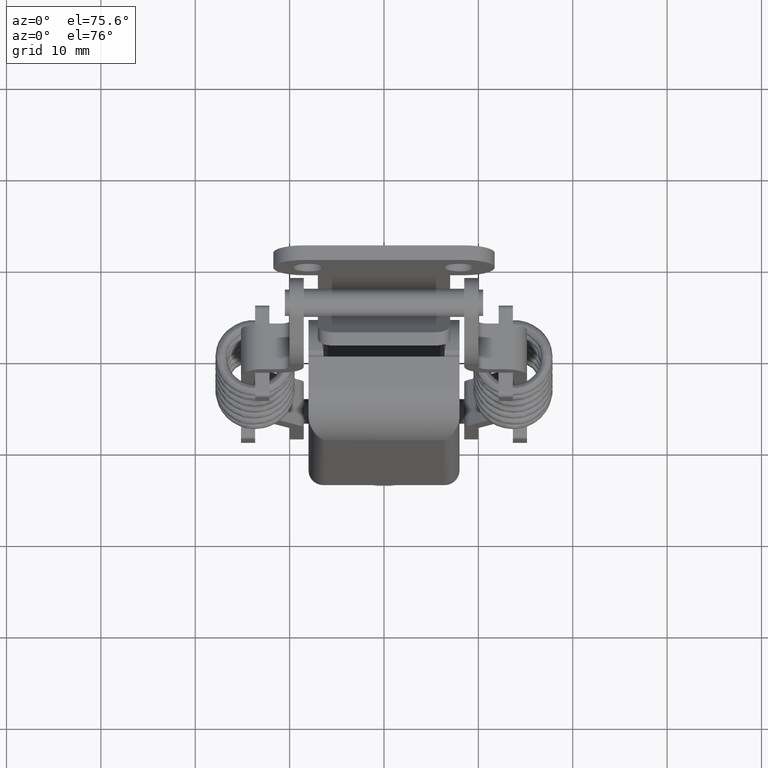
[diagram: clean part render]
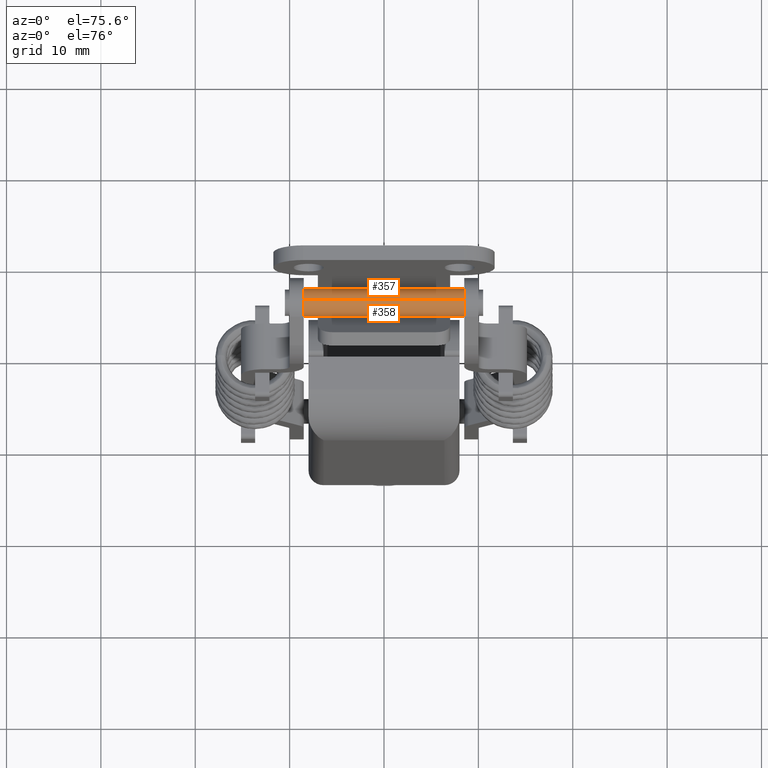
[diagram: same view with one multi-face feature highlighted, each face labeled with its STEP entity id]
A machine part, auxiliary view. The highlighted faces form ONE feature: a constant-radius fillet chain: 2 tangent blend faces with common blend radius 1.5 mm. The faces share edges in the B-rep.
Their STEP definitions:
[1] entity #357 (Cylinder):
#357=ADVANCED_FACE('',(#1142),#1141,.T.);
#1141=CYLINDRICAL_SURFACE('',#3264,1.50000000000E+00);
#1142=FACE_OUTER_BOUND('',#3265,.T.);
#3261=CARTESIAN_POINT('',(0.00000000000E+00,0.00000000000E+00,0.00000000000E+00));
#3262=DIRECTION('',(1.00000000000E+00,-0.00000000000E+00,-0.00000000000E+00));
#3263=DIRECTION('',(-0.00000000000E+00,-0.00000000000E+00,-1.00000000000E+00));
#3264=AXIS2_PLACEMENT_3D('',#3261,#3262,#3263);
#3265=EDGE_LOOP('',(#6609,#6610,#6611,#6612));
#6609=ORIENTED_EDGE('',*,*,#7697,.F.);
#6610=ORIENTED_EDGE('',*,*,#7703,.F.);
#6611=ORIENTED_EDGE('',*,*,#7553,.T.);
#6612=ORIENTED_EDGE('',*,*,#7704,.T.);
#7553=EDGE_CURVE('',#8277,#8278,#8279,.T.);
#7697=EDGE_CURVE('',#9230,#9229,#9237,.T.);
#7703=EDGE_CURVE('',#8277,#9230,#9273,.T.);
#7704=EDGE_CURVE('',#8278,#9229,#9279,.T.);
#8277=VERTEX_POINT('',#12415);
#8278=VERTEX_POINT('',#12416);
#8279=CIRCLE('',#12420,1.50000004070E+00);
#9229=VERTEX_POINT('',#12984);
#9230=VERTEX_POINT('',#12985);
#9237=CIRCLE('',#12993,1.50000004070E+00);
#9273=(BOUNDED_CURVE() B_SPLINE_CURVE(1,(#13005,#13006),.UNSPECIFIED.,.F.,.F.) B_SPLINE_CURVE_WITH_KNOTS((2,2),(8.33333328360E-02,9.16666665505E-01),.UNSPECIFIED.) CURVE() GEOMETRIC_REPRESENTATION_ITEM() RATIONAL_B_SPLINE_CURVE((1.00000000000E+00,1.00000000000E+00)) REPRESENTATION_ITEM('') );
#9279=(BOUNDED_CURVE() B_SPLINE_CURVE(1,(#13007,#13008),.UNSPECIFIED.,.F.,.F.) B_SPLINE_CURVE_WITH_KNOTS((2,2),(8.33333333333E-02,9.16666666667E-01),.UNSPECIFIED.) CURVE() GEOMETRIC_REPRESENTATION_ITEM() RATIONAL_B_SPLINE_CURVE((7.50000000000E-01,7.50000000000E-01)) REPRESENTATION_ITEM('') );
#12415=CARTESIAN_POINT('',(-8.49999938946E+00,2.96059473233E-16,-1.50000004070E+00));
#12416=CARTESIAN_POINT('',(-8.49999938946E+00,0.00000000000E+00,1.50000004070E+00));
#12417=CARTESIAN_POINT('',(-8.49999938946E+00,0.00000000000E+00,0.00000000000E+00));
#12418=DIRECTION('',(1.00000000000E+00,0.00000000000E+00,-0.00000000000E+00));
#12419=DIRECTION('',(0.00000000000E+00,-1.22460635382E-16,1.00000000000E+00));
#12420=AXIS2_PLACEMENT_3D('',#12417,#12418,#12419);
#12984=CARTESIAN_POINT('',(8.49999938946E+00,0.00000000000E+00,1.50000004070E+00));
#12985=CARTESIAN_POINT('',(8.49999938946E+00,2.96059473233E-16,-1.50000004070E+00));
#12990=CARTESIAN_POINT('',(8.49999938946E+00,0.00000000000E+00,0.00000000000E+00));
#12991=DIRECTION('',(1.00000000000E+00,0.00000000000E+00,-0.00000000000E+00));
#12992=DIRECTION('',(0.00000000000E+00,-1.22460635382E-16,1.00000000000E+00));
#12993=AXIS2_PLACEMENT_3D('',#12990,#12991,#12992);
#13005=CARTESIAN_POINT('',(-8.49999939961E+00,0.00000000000E+00,-1.50000000000E+00));
#13006=CARTESIAN_POINT('',(8.49999936576E+00,0.00000000000E+00,-1.50000000000E+00));
#13007=CARTESIAN_POINT('',(-8.49999938946E+00,-7.40148683083E-17,1.50000000000E+00));
#13008=CARTESIAN_POINT('',(8.49999938946E+00,-7.40148683083E-17,1.50000000000E+00));
[2] entity #358 (Cylinder):
#358=ADVANCED_FACE('',(#1152),#1151,.T.);
#1151=CYLINDRICAL_SURFACE('',#3269,1.50000000000E+00);
#1152=FACE_OUTER_BOUND('',#3270,.T.);
#3266=CARTESIAN_POINT('',(0.00000000000E+00,0.00000000000E+00,0.00000000000E+00));
#3267=DIRECTION('',(1.00000000000E+00,-0.00000000000E+00,-0.00000000000E+00));
#3268=DIRECTION('',(-0.00000000000E+00,-0.00000000000E+00,-1.00000000000E+00));
#3269=AXIS2_PLACEMENT_3D('',#3266,#3267,#3268);
#3270=EDGE_LOOP('',(#6613,#6614,#6615,#6616));
#6613=ORIENTED_EDGE('',*,*,#7554,.T.);
#6614=ORIENTED_EDGE('',*,*,#7703,.T.);
#6615=ORIENTED_EDGE('',*,*,#7696,.F.);
#6616=ORIENTED_EDGE('',*,*,#7704,.F.);
#7554=EDGE_CURVE('',#8278,#8277,#8285,.T.);
#7696=EDGE_CURVE('',#9229,#9230,#9231,.T.);
#7703=EDGE_CURVE('',#8277,#9230,#9273,.T.);
#7704=EDGE_CURVE('',#8278,#9229,#9279,.T.);
#8277=VERTEX_POINT('',#12415);
#8278=VERTEX_POINT('',#12416);
#8285=CIRCLE('',#12424,1.50000004070E+00);
#9229=VERTEX_POINT('',#12984);
#9230=VERTEX_POINT('',#12985);
#9231=CIRCLE('',#12989,1.50000004070E+00);
#9273=(BOUNDED_CURVE() B_SPLINE_CURVE(1,(#13005,#13006),.UNSPECIFIED.,.F.,.F.) B_SPLINE_CURVE_WITH_KNOTS((2,2),(8.33333328360E-02,9.16666665505E-01),.UNSPECIFIED.) CURVE() GEOMETRIC_REPRESENTATION_ITEM() RATIONAL_B_SPLINE_CURVE((1.00000000000E+00,1.00000000000E+00)) REPRESENTATION_ITEM('') );
#9279=(BOUNDED_CURVE() B_SPLINE_CURVE(1,(#13007,#13008),.UNSPECIFIED.,.F.,.F.) B_SPLINE_CURVE_WITH_KNOTS((2,2),(8.33333333333E-02,9.16666666667E-01),.UNSPECIFIED.) CURVE() GEOMETRIC_REPRESENTATION_ITEM() RATIONAL_B_SPLINE_CURVE((7.50000000000E-01,7.50000000000E-01)) REPRESENTATION_ITEM('') );
#12415=CARTESIAN_POINT('',(-8.49999938946E+00,2.96059473233E-16,-1.50000004070E+00));
#12416=CARTESIAN_POINT('',(-8.49999938946E+00,0.00000000000E+00,1.50000004070E+00));
#12421=CARTESIAN_POINT('',(-8.49999938946E+00,0.00000000000E+00,0.00000000000E+00));
#12422=DIRECTION('',(1.00000000000E+00,0.00000000000E+00,-0.00000000000E+00));
#12423=DIRECTION('',(0.00000000000E+00,-1.22460635382E-16,1.00000000000E+00));
#12424=AXIS2_PLACEMENT_3D('',#12421,#12422,#12423);
#12984=CARTESIAN_POINT('',(8.49999938946E+00,0.00000000000E+00,1.50000004070E+00));
#12985=CARTESIAN_POINT('',(8.49999938946E+00,2.96059473233E-16,-1.50000004070E+00));
#12986=CARTESIAN_POINT('',(8.49999938946E+00,0.00000000000E+00,0.00000000000E+00));
#12987=DIRECTION('',(1.00000000000E+00,0.00000000000E+00,-0.00000000000E+00));
#12988=DIRECTION('',(0.00000000000E+00,-1.22460635382E-16,1.00000000000E+00));
#12989=AXIS2_PLACEMENT_3D('',#12986,#12987,#12988);
#13005=CARTESIAN_POINT('',(-8.49999939961E+00,0.00000000000E+00,-1.50000000000E+00));
#13006=CARTESIAN_POINT('',(8.49999936576E+00,0.00000000000E+00,-1.50000000000E+00));
#13007=CARTESIAN_POINT('',(-8.49999938946E+00,-7.40148683083E-17,1.50000000000E+00));
#13008=CARTESIAN_POINT('',(8.49999938946E+00,-7.40148683083E-17,1.50000000000E+00));